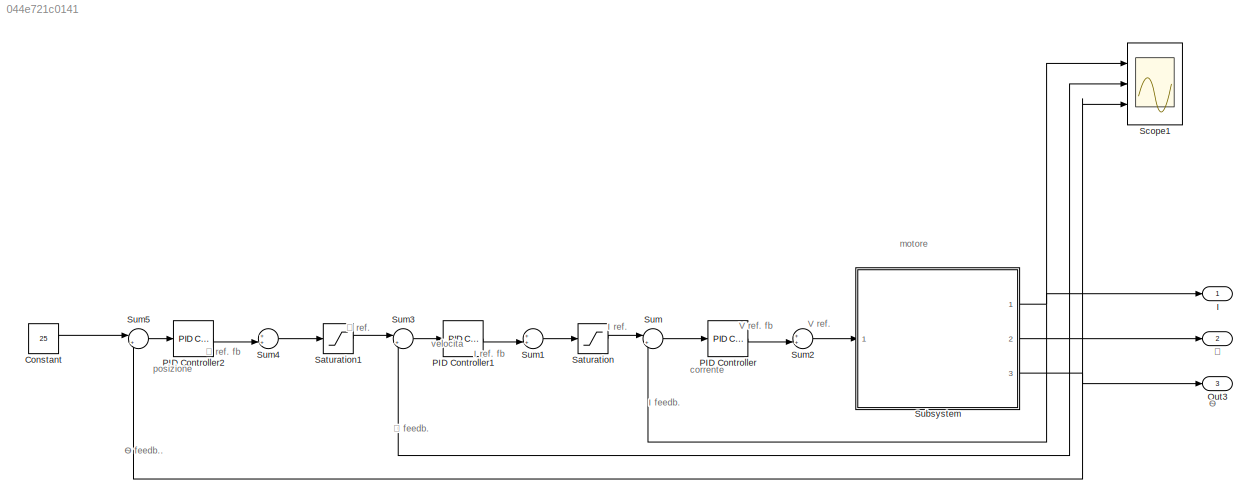
MODEL slx_044e721c0141
KIND model
CONFIG AbsTol = auto
CONFIG EnableMultiTasking = off
CONFIG FixedStep = auto
CONFIG MaxStep = auto
CONFIG MinStep = auto
CONFIG RelTol = 1e-3
CONFIG SampleTimeConstraint = Unconstrained
CONFIG SolverName = VariableStepAuto
CONFIG StartTime = 0.0
CONFIG StopTime = 10.0
BLOCK [Constant] Constant
  Value = 25
BLOCK [Outport] I
BLOCK [Outport] Out3
  Port = 3
BLOCK [Reference] PID Controller  REF=pid_lib/PID Controller
  Ports = [1, 1]
  SourceBlock = pid_lib/PID Controller
  SourceProductBaseCode = SL
  SourceType = PID 1dof
BLOCK [Reference] PID Controller1  REF=pid_lib/PID Controller
  Ports = [1, 1]
  SourceBlock = pid_lib/PID Controller
  SourceProductBaseCode = SL
  SourceType = PID 1dof
BLOCK [Reference] PID Controller2  REF=pid_lib/PID Controller
  Ports = [1, 1]
  SourceBlock = pid_lib/PID Controller
  SourceProductBaseCode = SL
  SourceType = PID 1dof
BLOCK [Saturate] Saturation
  LowerLimit = -10
  UpperLimit = 10
BLOCK [Saturate] Saturation1
  LowerLimit = -75
  UpperLimit = 75
BLOCK [Scope] Scope1
  Floating = off
  NumInputPorts = 3
  Ports = [3]
  ScopeSpecificationString = Simulink.scopes.TimeScopeBlockCfg('CurrentConfiguration', extmgr.ConfigurationSet(extmgr.Configuration('Core','General UI',true),extmgr.Configuration('Core','Source UI',true),extmgr.Configuration('Sources','WiredSimulink',true,'DataLoggingVariableName','ScopeData1'),extmgr.Configuration('Visuals','Time Domain',true,'SerializedDisplays',{struct('MinYLimReal','-4.92519','MaxYLimReal','28.36708','YLa...<+1526ch>
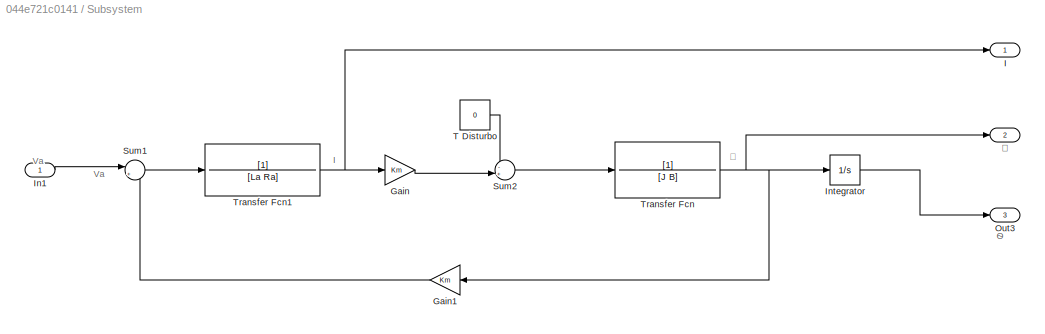
BLOCK [SubSystem] Subsystem
  Ports = [1, 3]
  RequestExecContextInheritance = off
BLOCK [Gain] Subsystem/Gain
  Gain = Km
BLOCK [Gain] Subsystem/Gain1
  Gain = Km
BLOCK [Outport] Subsystem/I
BLOCK [Inport] Subsystem/In1
BLOCK [Integrator] Subsystem/Integrator
  Ports = [1, 1]
BLOCK [Outport] Subsystem/Out3
  Port = 3
BLOCK [Sum] Subsystem/Sum1
  Inputs = |+-
  Ports = [2, 1]
BLOCK [Sum] Subsystem/Sum2
  Inputs = -+|
  Ports = [2, 1]
BLOCK [Constant] Subsystem/T Disturbo
  Value = 0
BLOCK [TransferFcn] Subsystem/Transfer Fcn
  Denominator = [J B]
BLOCK [TransferFcn] Subsystem/Transfer Fcn1
  Denominator = [La Ra]
BLOCK [Outport] Subsystem/Ꞷ
  Port = 2
BLOCK [Sum] Sum
  Inputs = |+-
  Ports = [2, 1]
BLOCK [Sum] Sum1
  Inputs = ++|
  Ports = [2, 1]
BLOCK [Sum] Sum2
  Inputs = ++|
  Ports = [2, 1]
BLOCK [Sum] Sum3
  Inputs = |+-
  Ports = [2, 1]
BLOCK [Sum] Sum4
  Inputs = ++|
  Ports = [2, 1]
BLOCK [Sum] Sum5
  Inputs = |+-
  Ports = [2, 1]
BLOCK [Outport] Ꞷ
  Port = 2
ANNOTATION (root): Ѳ feedb..
ANNOTATION (root): Ѳ
ANNOTATION (root): I feedb.
ANNOTATION (root): I ref.
ANNOTATION (root): I ref. fb
ANNOTATION (root): V ref.
ANNOTATION (root): V ref. fb
ANNOTATION (root): corrente
ANNOTATION (root): motore
ANNOTATION (root): posizione
ANNOTATION (root): velocita
ANNOTATION (root): Ꞷ feedb.
ANNOTATION (root): Ꞷ ref.
ANNOTATION (root): Ꞷ ref. fb
ANNOTATION Subsystem: I
ANNOTATION Subsystem: Va
ANNOTATION Subsystem: Ѳ
ANNOTATION Subsystem: Ꞷ
LINE Constant:1 -> Sum5:1
LINE PID Controller1:1 -> Sum1:2
LINE PID Controller2:1 -> Sum4:2
LINE PID Controller:1 -> Sum2:2
LINE Saturation1:1 -> Sum3:1
LINE Saturation:1 -> Sum:1
LINE Subsystem/Gain1:1 -> Subsystem/Sum1:2
LINE Subsystem/Gain:1 -> Subsystem/Sum2:2
LINE Subsystem/In1:1 -> Subsystem/Sum1:1
LINE Subsystem/Integrator:1 -> Subsystem/Out3:1
LINE Subsystem/Sum1:1 -> Subsystem/Transfer Fcn1:1
LINE Subsystem/Sum2:1 -> Subsystem/Transfer Fcn:1
LINE Subsystem/T Disturbo:1 -> Subsystem/Sum2:1
NET Subsystem/Transfer Fcn1:1 -> Subsystem/Gain:1, Subsystem/I:1
NET Subsystem/Transfer Fcn:1 -> Subsystem/Gain1:1, Subsystem/Integrator:1, Subsystem/Ꞷ:1
NET Subsystem:1 -> I:1, Scope1:1, Sum:2
NET Subsystem:2 -> Scope1:2, Sum3:2, Ꞷ:1
NET Subsystem:3 -> Out3:1, Scope1:3, Sum5:2
LINE Sum1:1 -> Saturation:1
LINE Sum2:1 -> Subsystem:1
LINE Sum3:1 -> PID Controller1:1
LINE Sum4:1 -> Saturation1:1
LINE Sum5:1 -> PID Controller2:1
LINE Sum:1 -> PID Controller:1
note: NET lines group one-source signal fan-out (src -> all destinations, sorted); 1:1 wires keep LINE
